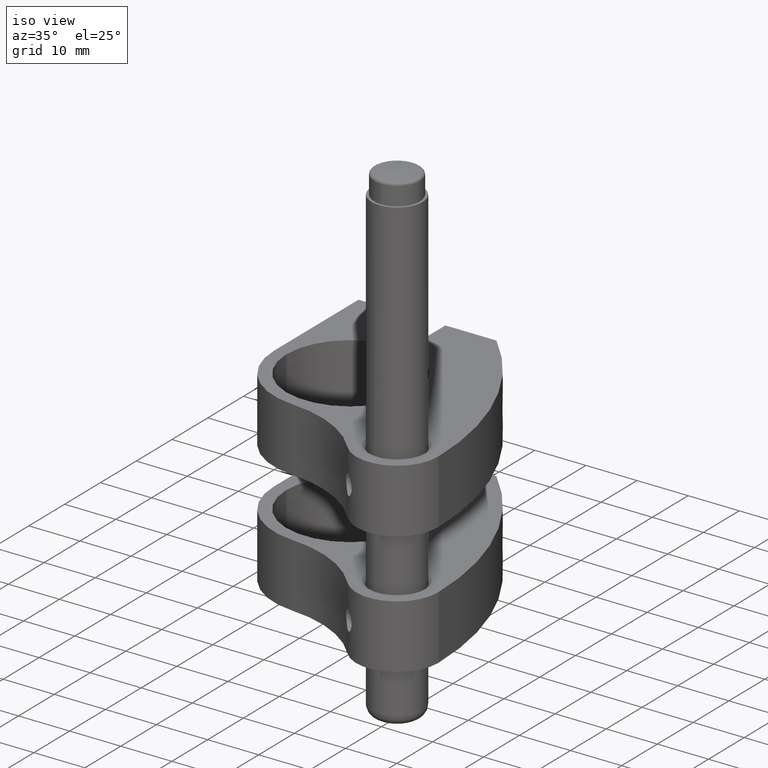
[diagram: clean part render]
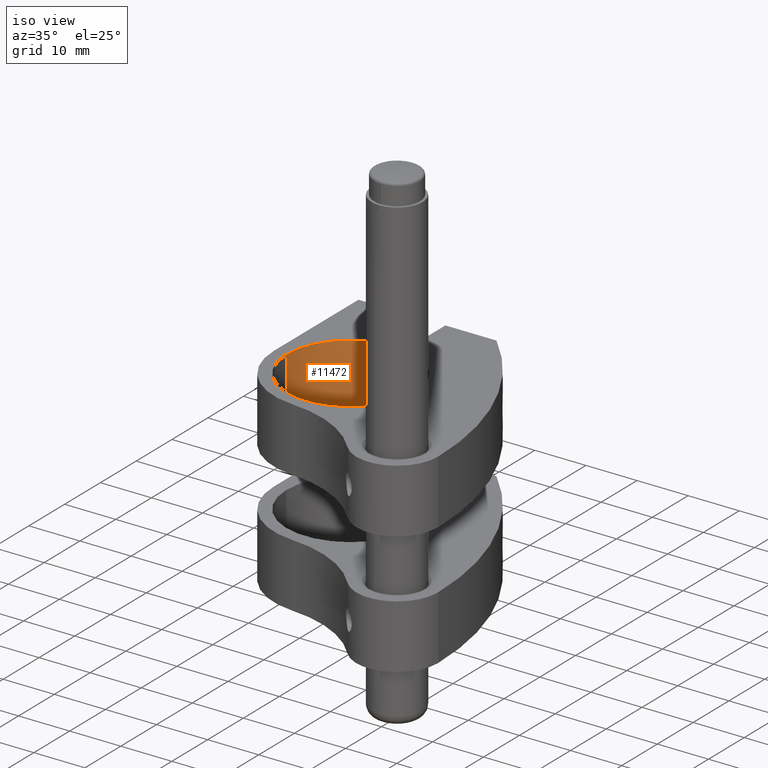
[diagram: same view with one face highlighted and labeled with its STEP entity id]
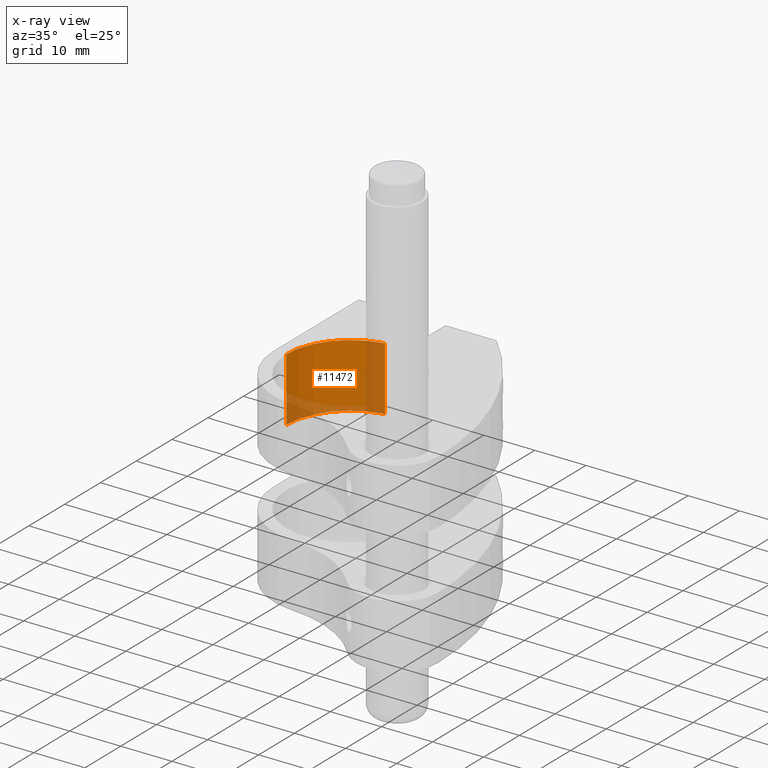
[diagram: x-ray of the same camera — body ghosted, the highlighted face saturated]
A machine part, iso view. The second image highlights one B-rep face of the part: STEP entity #11472.
The next image is the same camera in x-ray: the body ghosted, the highlighted face saturated — about 32% of this face is hidden behind the body in this view.
In plain terms, the highlighted cylindrical surface (partial cylindrical patch) has radius 12.6 mm, axis along (-0, -0, -1).
Its self-contained STEP definition (entity closure, byte-faithful):
#952 = EDGE_CURVE ( 'NONE', #2105, #8018, #1009, .T. ) ;
#1009 = LINE ( 'NONE', #8225, #13447 ) ;
#1173 = CARTESIAN_POINT ( 'NONE',  ( 0.0000000000000000000, 0.0000000000000000000, 6.249999999999998200 ) ) ;
#1380 = DIRECTION ( 'NONE',  ( 1.000000000000000000, 0.0000000000000000000, 0.0000000000000000000 ) ) ;
#2105 = VERTEX_POINT ( 'NONE', #18600 ) ;
#2639 = AXIS2_PLACEMENT_3D ( 'NONE', #1173, #21651, #1380 ) ;
#3333 = ORIENTED_EDGE ( 'NONE', *, *, #7824, .F. ) ;
#4026 = CARTESIAN_POINT ( 'NONE',  ( 0.0000000000000000000, 0.0000000000000000000, -6.249999999999998200 ) ) ;
#5239 = CARTESIAN_POINT ( 'NONE',  ( -1.999999999999998700, 12.44025723206719100, -6.249999999999998200 ) ) ;
#5429 = EDGE_CURVE ( 'NONE', #7249, #8018, #13862, .T. ) ;
#5747 = DIRECTION ( 'NONE',  ( -0.0000000000000000000, -0.0000000000000000000, -1.000000000000000000 ) ) ;
#6619 = EDGE_LOOP ( 'NONE', ( #3333, #9317, #17094, #15129 ) ) ;
#6792 = EDGE_CURVE ( 'NONE', #18940, #7249, #16959, .T. ) ;
#7249 = VERTEX_POINT ( 'NONE', #15981 ) ;
#7757 = DIRECTION ( 'NONE',  ( -0.0000000000000000000, -0.0000000000000000000, -1.000000000000000000 ) ) ;
#7824 = EDGE_CURVE ( 'NONE', #18940, #2105, #17697, .T. ) ;
#8006 = VECTOR ( 'NONE', #7757, 1000.000000000000000 ) ;
#8018 = VERTEX_POINT ( 'NONE', #5239 ) ;
#8225 = CARTESIAN_POINT ( 'NONE',  ( -1.999999999999998700, 12.44025723206719100, 6.249999999999998200 ) ) ;
#9317 = ORIENTED_EDGE ( 'NONE', *, *, #6792, .T. ) ;
#10187 = AXIS2_PLACEMENT_3D ( 'NONE', #15700, #19228, #10611 ) ;
#10611 = DIRECTION ( 'NONE',  ( -1.000000000000000000, 0.0000000000000000000, 0.0000000000000000000 ) ) ;
#11012 = CARTESIAN_POINT ( 'NONE',  ( -12.60000000000000000, 0.0000000000000000000, 6.249999999999998200 ) ) ;
#11472 = ADVANCED_FACE ( 'NONE', ( #14622 ), #15676, .F. ) ;
#13447 = VECTOR ( 'NONE', #21682, 1000.000000000000000 ) ;
#13862 = CIRCLE ( 'NONE', #21812, 12.60000000000000000 ) ;
#14180 = CARTESIAN_POINT ( 'NONE',  ( -12.60000000000000000, 0.0000000000000000000, 6.249999999999998200 ) ) ;
#14622 = FACE_OUTER_BOUND ( 'NONE', #6619, .T. ) ;
#15129 = ORIENTED_EDGE ( 'NONE', *, *, #952, .F. ) ;
#15676 = CYLINDRICAL_SURFACE ( 'NONE', #10187, 12.60000000000000000 ) ;
#15700 = CARTESIAN_POINT ( 'NONE',  ( 0.0000000000000000000, 0.0000000000000000000, 6.249999999999998200 ) ) ;
#15981 = CARTESIAN_POINT ( 'NONE',  ( -12.60000000000000000, 0.0000000000000000000, -6.249999999999998200 ) ) ;
#16959 = LINE ( 'NONE', #14180, #8006 ) ;
#17094 = ORIENTED_EDGE ( 'NONE', *, *, #5429, .T. ) ;
#17697 = CIRCLE ( 'NONE', #2639, 12.60000000000000000 ) ;
#18600 = CARTESIAN_POINT ( 'NONE',  ( -1.999999999999998700, 12.44025723206719100, 6.249999999999998200 ) ) ;
#18940 = VERTEX_POINT ( 'NONE', #11012 ) ;
#19228 = DIRECTION ( 'NONE',  ( -0.0000000000000000000, -0.0000000000000000000, -1.000000000000000000 ) ) ;
#21401 = DIRECTION ( 'NONE',  ( 1.000000000000000000, 0.0000000000000000000, 0.0000000000000000000 ) ) ;
#21651 = DIRECTION ( 'NONE',  ( -0.0000000000000000000, -0.0000000000000000000, -1.000000000000000000 ) ) ;
#21682 = DIRECTION ( 'NONE',  ( -0.0000000000000000000, -0.0000000000000000000, -1.000000000000000000 ) ) ;
#21812 = AXIS2_PLACEMENT_3D ( 'NONE', #4026, #5747, #21401 ) ;